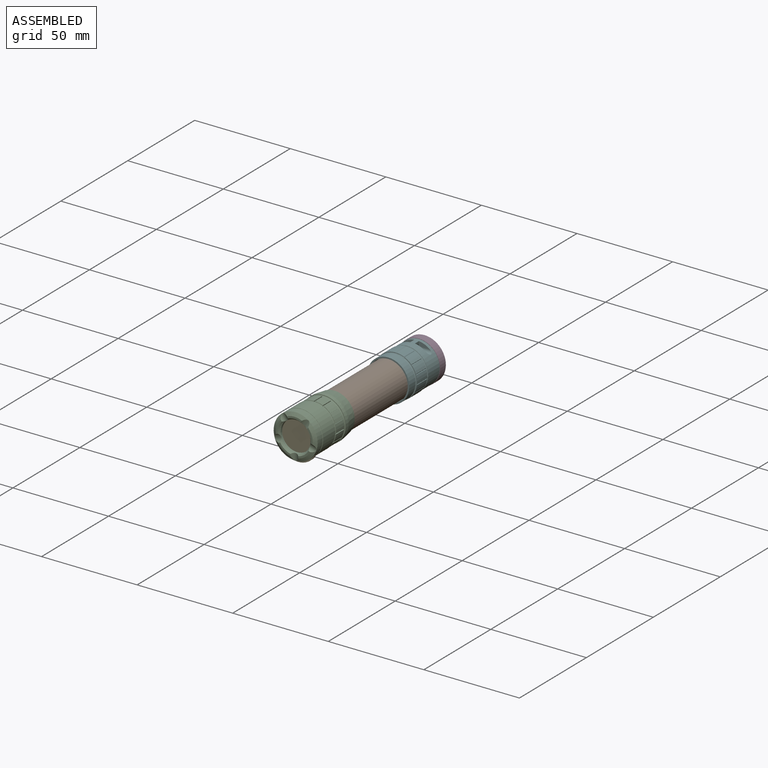
[diagram: assembled view]
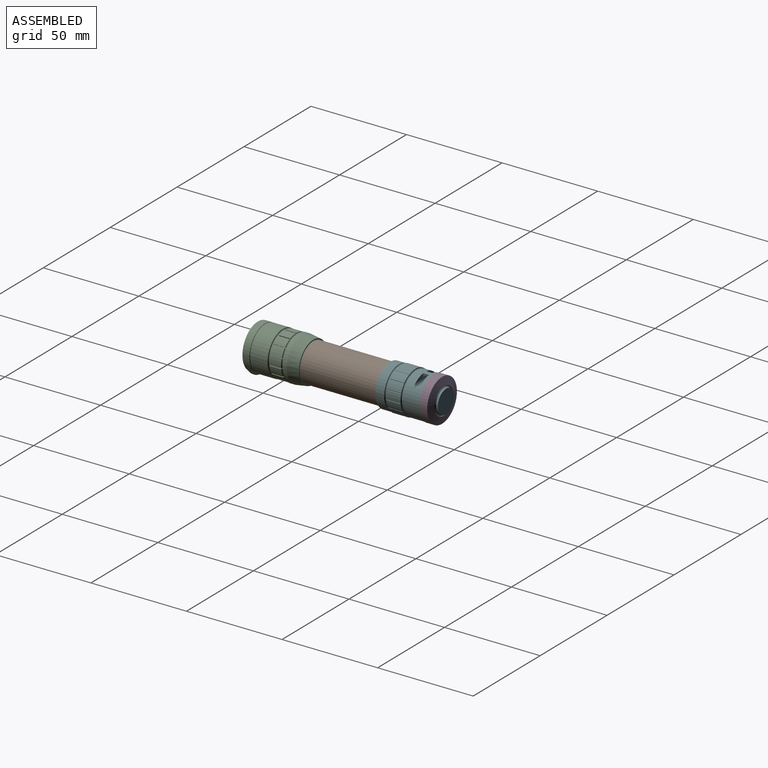
[diagram: assembled view, second angle]
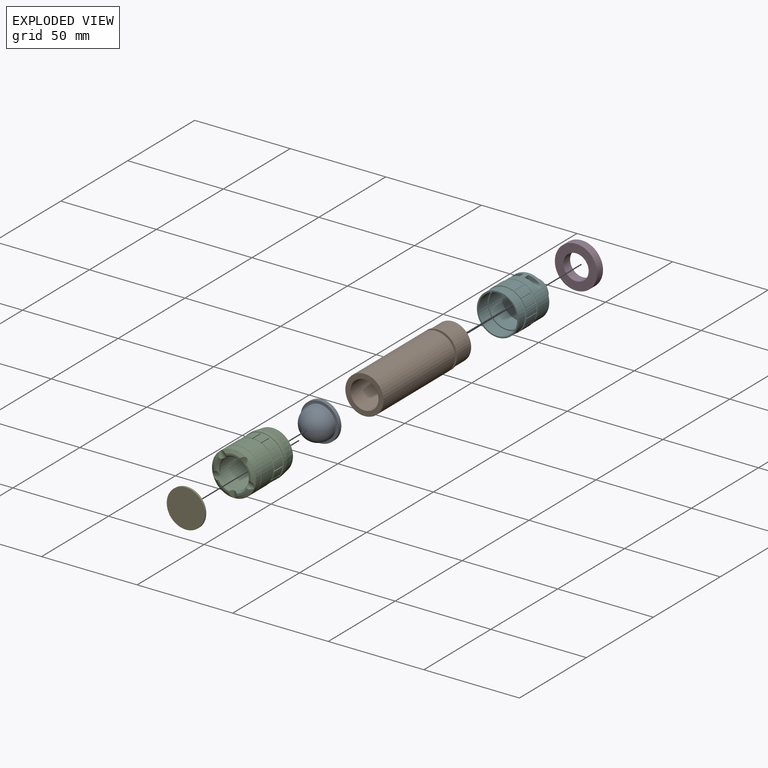
[diagram: exploded view]
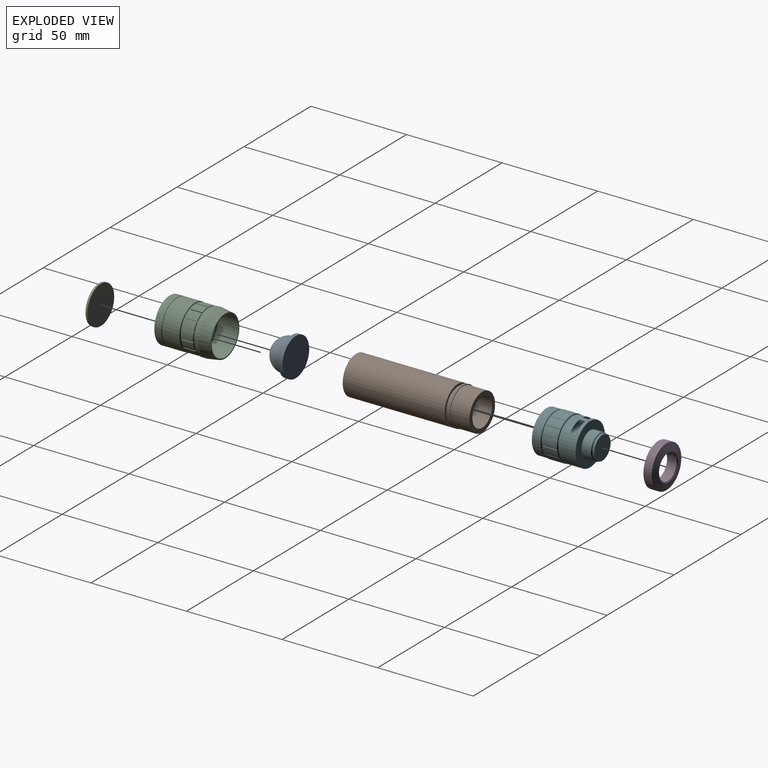
[diagram: exploded view, second angle]
ASSEMBLY  parts=6 mates=5
PART A: 5 faces, bbox 20x12x20 mm
  f0: cylinder r=8.5mm len=17mm, axis (0,-1,0), area 80.1mm2, adj f1,f4
  f1: sphere r=8.5mm, area 454mm2, adj f0
  f2: plane 20x20mm, normal (0,1,0), area 314.2mm2, adj f3
  f3: cylinder r=10mm len=20mm, axis (0,-1,0), area 125.7mm2, adj f2,f4
  f4: plane 20x20mm, normal (0,-1,0), area 87.2mm2, adj f0,f3
PART B: 10 faces, bbox 20x66x20 mm
  f0: cylinder r=10mm len=53.3mm, axis (0,-1,0), area 3348.9mm2, adj f1,f9
  f1: plane 20x20mm, normal (0,-1,0), area 144.4mm2, adj f0,f2
  f2: cylinder r=7.35mm len=66mm, axis (0,-1,0), area 3048mm2, adj f1,f3
  f3: plane 19.25x19.25mm, normal (0,1,0), area 121.3mm2, adj f2,f4
  f4: cylinder r=9.62mm len=19.25mm, axis (0,-1,0), area 604.8mm2, adj f3,f5
  f5: plane 20x20mm, normal (0,1,0), area 23.1mm2, adj f4,f6
  f6: cylinder r=10mm len=20mm, axis (0,-1,0), area 75.4mm2, adj f5,f7
  f7: plane 20x20mm, normal (0,-1,0), area 70.9mm2, adj f6,f8
  f8: cylinder r=8.8mm len=17.6mm, axis (0,-1,0), area 82.9mm2, adj f7,f9
  f9: plane 20x20mm, normal (0,1,0), area 70.9mm2, adj f0,f8
PART C: 95 faces, bbox 25.3x30x25.3 mm
  f0: cone r=11.5mm half-angle=60.9deg, axis (0,1,0), area 21.6mm2, adj f2,f32,f93,f94
  f1: cone r=7.85mm half-angle=40.4deg, axis (0,-1,0), area 10mm2, adj f2,f34,f93,f94
  f2: plane 7.53x3.11mm, normal (0,-1,0), area 7.5mm2, adj f0,f1,f93,f94
  f3: cone r=11.5mm half-angle=60.9deg, axis (0,1,0), area 21.6mm2, adj f32,f33,f90,f94
  f4: cone r=11.5mm half-angle=60.9deg, axis (0,1,0), area 21.6mm2, adj f7,f32,f92,f93
  f5: cone r=7.85mm half-angle=40.4deg, axis (0,-1,0), area 10mm2, adj f33,f34,f90,f94
  f6: cone r=7.85mm half-angle=40.4deg, axis (0,-1,0), area 10mm2, adj f7,f34,f92,f93
  f7: plane 7.92x1.67mm, normal (0,-1,0), area 7.5mm2, adj f4,f6,f92,f93
  f8: cone r=11.5mm half-angle=60.9deg, axis (0,1,0), area 21.6mm2, adj f10,f32,f91,f92
  f9: cone r=7.85mm half-angle=40.4deg, axis (0,-1,0), area 10mm2, adj f10,f34,f91,f92
  f10: plane 7.53x3.11mm, normal (0,-1,0), area 7.5mm2, adj f8,f9,f91,f92
  f11: cone r=11.5mm half-angle=60.9deg, axis (0,1,0), area 21.6mm2, adj f12,f32,f90,f91
  f12: plane 6.41x4.97mm, normal (0,-1,0), area 7.5mm2, adj f11,f13,f90,f91
  f13: cone r=7.85mm half-angle=40.4deg, axis (0,-1,0), area 10mm2, adj f12,f34,f90,f91
  f14: cylinder r=11.35mm len=6mm, axis (0,-1,0), area 25.5mm2, adj f28,f43,f45,f89
  f15: cylinder r=11.35mm len=6mm, axis (0,-1,0), area 25.5mm2, adj f28,f43,f86,f87
  f16: cylinder r=11.35mm len=6mm, axis (0,-1,0), area 25.5mm2, adj f28,f43,f83,f84
  f17: cylinder r=11.35mm len=6mm, axis (0,-1,0), area 25.5mm2, adj f28,f43,f80,f81
  f18: cylinder r=11.35mm len=6mm, axis (0,-1,0), area 25.5mm2, adj f28,f43,f77,f78
  f19: cylinder r=11.35mm len=6mm, axis (0,-1,0), area 25.5mm2, adj f28,f43,f74,f75
  f20: cylinder r=11.35mm len=6mm, axis (0,-1,0), area 25.5mm2, adj f28,f43,f71,f72
  f21: cylinder r=11.35mm len=6mm, axis (0,-1,0), area 25.5mm2, adj f28,f43,f68,f69
  f22: cylinder r=11.35mm len=6mm, axis (0,-1,0), area 25.5mm2, adj f28,f43,f65,f66
  f23: cylinder r=11.35mm len=6mm, axis (0,-1,0), area 25.5mm2, adj f28,f43,f62,f63
  f24: cylinder r=11.35mm len=6mm, axis (0,-1,0), area 25.5mm2, adj f28,f43,f59,f60
  f25: cylinder r=11.35mm len=6mm, axis (0,-1,0), area 25.5mm2, adj f28,f43,f56,f57
  f26: cylinder r=11.35mm len=6mm, axis (0,-1,0), area 25.5mm2, adj f28,f43,f53,f54
  f27: cylinder r=11.35mm len=6mm, axis (0,-1,0), area 25.5mm2, adj f28,f43,f50,f51
  f28: torus R=11.35mm, axis (0,-1,0), area 103.2mm2, adj f14,f15,f16,f17,f18,f19,f20,f21
  f29: plane 23x23mm, normal (0,1,0), area 10.8mm2, adj f28,f30
  f30: cylinder r=11.5mm len=23mm, axis (0,-1,0), area 643.1mm2, adj f29,f31
  f31: torus R=11.5mm, axis (0,-1,0), area 56mm2, adj f30,f32
  f32: cylinder r=11.5mm len=23mm, axis (0,-1,0), area 267.3mm2, adj f0,f3,f4,f8,f11,f31
  f33: plane 6.41x4.97mm, normal (0,-1,0), area 7.5mm2, adj f3,f5,f90,f94
  f34: cylinder r=7.85mm len=15.7mm, axis (0,-1,0), area 74mm2, adj f1,f5,f6,f9,f13,f35
  f35: plane 18x18mm, normal (0,1,0), area 60.9mm2, adj f34,f36
  f36: cylinder r=9mm len=18mm, axis (0,-1,0), area 927.4mm2, adj f35,f37
  f37: plane 20x20mm, normal (0,1,0), area 59.7mm2, adj f36,f38
  f38: cylinder r=10mm len=20mm, axis (0,-1,0), area 697.4mm2, adj f37,f39
  f39: plane 21.2x21.2mm, normal (0,1,0), area 38.8mm2, adj f38,f40
  f40: cone r=10.6mm half-angle=8.7deg, axis (0,-1,0), area 414.4mm2, adj f39,f41
  f41: cylinder r=11.5mm len=23mm, axis (0,-1,0), area 144.5mm2, adj f40,f42
  f42: plane 23x23mm, normal (0,-1,0), area 10.8mm2, adj f41,f43
  f43: torus R=11.35mm, axis (0,-1,0), area 103.2mm2, adj f14,f15,f16,f17,f18,f19,f20,f21
  f44: cylinder r=11.35mm len=6mm, axis (0,-1,0), area 25.5mm2, adj f28,f43,f47,f48
  f45: plane 6.9x0.46mm, normal (0.91,0,-0.41), area 3.1mm2, adj f14,f28,f43,f46
  f46: plane 7x0.46mm, normal (0.41,0,0.91), area 3.5mm2, adj f28,f43,f45,f47
  f47: plane 6.9x0.46mm, normal (-0.91,0,0.41), area 3.1mm2, adj f28,f43,f44,f46
  f48: plane 6.9x0.37mm, normal (0.67,0,-0.74), area 3.1mm2, adj f28,f43,f44,f49
  f49: plane 7x0.37mm, normal (0.74,0,0.67), area 3.5mm2, adj f28,f43,f48,f50
  f50: plane 6.9x0.37mm, normal (-0.67,0,0.74), area 3.1mm2, adj f27,f28,f43,f49
  f51: plane 6.9x0.48mm, normal (0.31,0,-0.95), area 3.1mm2, adj f27,f28,f43,f52
  f52: plane 7x0.48mm, normal (0.95,0,0.31), area 3.5mm2, adj f28,f43,f51,f53
  f53: plane 6.9x0.48mm, normal (-0.31,0,0.95), area 3.1mm2, adj f26,f28,f43,f52
  f54: plane 6.9x0.5mm, normal (-0.1,0,-0.99), area 3.1mm2, adj f26,f28,f43,f55
  f55: plane 7x0.5mm, normal (0.99,0,-0.1), area 3.5mm2, adj f28,f43,f54,f56
  f56: plane 6.9x0.5mm, normal (0.1,0,0.99), area 3.1mm2, adj f25,f28,f43,f55
  f57: plane 6.9x0.43mm, normal (-0.5,0,-0.87), area 3.1mm2, adj f25,f28,f43,f58
  f58: plane 7x0.43mm, normal (0.87,0,-0.5), area 3.5mm2, adj f28,f43,f57,f59
  f59: plane 6.9x0.43mm, normal (0.5,0,0.87), area 3.1mm2, adj f24,f28,f43,f58
  f60: plane 6.9x0.41mm, normal (-0.81,0,-0.59), area 3.1mm2, adj f24,f28,f43,f61
  f61: plane 7x0.4mm, normal (0.59,0,-0.81), area 3.5mm2, adj f28,f43,f60,f62
  f62: plane 6.9x0.41mm, normal (0.81,0,0.59), area 3.1mm2, adj f23,f28,f43,f61
  f63: plane 6.9x0.49mm, normal (-0.98,0,-0.21), area 3.1mm2, adj f23,f28,f43,f64
  f64: plane 7x0.49mm, normal (0.21,0,-0.98), area 3.5mm2, adj f28,f43,f63,f65
  f65: plane 6.9x0.49mm, normal (0.98,0,0.21), area 3.1mm2, adj f22,f28,f43,f64
  f66: plane 6.9x0.49mm, normal (-0.98,0,0.21), area 3.1mm2, adj f22,f28,f43,f67
  f67: plane 7x0.49mm, normal (-0.21,0,-0.98), area 3.5mm2, adj f28,f43,f66,f68
  f68: plane 6.9x0.49mm, normal (0.98,0,-0.21), area 3.1mm2, adj f21,f28,f43,f67
  f69: plane 6.9x0.41mm, normal (-0.81,0,0.59), area 3.1mm2, adj f21,f28,f43,f70
  f70: plane 7x0.4mm, normal (-0.59,0,-0.81), area 3.5mm2, adj f28,f43,f69,f71
  f71: plane 6.9x0.41mm, normal (0.81,0,-0.59), area 3.1mm2, adj f20,f28,f43,f70
  f72: plane 6.9x0.43mm, normal (-0.5,0,0.87), area 3.1mm2, adj f20,f28,f43,f73
  f73: plane 7x0.43mm, normal (-0.87,0,-0.5), area 3.5mm2, adj f28,f43,f72,f74
  f74: plane 6.9x0.43mm, normal (0.5,0,-0.87), area 3.1mm2, adj f19,f28,f43,f73
  f75: plane 6.9x0.5mm, normal (-0.1,0,0.99), area 3.1mm2, adj f19,f28,f43,f76
  f76: plane 7x0.5mm, normal (-0.99,0,-0.1), area 3.5mm2, adj f28,f43,f75,f77
  f77: plane 6.9x0.5mm, normal (0.1,0,-0.99), area 3.1mm2, adj f18,f28,f43,f76
  f78: plane 6.9x0.48mm, normal (0.31,0,0.95), area 3.1mm2, adj f18,f28,f43,f79
  f79: plane 7x0.48mm, normal (-0.95,0,0.31), area 3.5mm2, adj f28,f43,f78,f80
  f80: plane 6.9x0.48mm, normal (-0.31,0,-0.95), area 3.1mm2, adj f17,f28,f43,f79
  f81: plane 6.9x0.37mm, normal (0.67,0,0.74), area 3.1mm2, adj f17,f28,f43,f82
  f82: plane 7x0.37mm, normal (-0.74,0,0.67), area 3.5mm2, adj f28,f43,f81,f83
  f83: plane 6.9x0.37mm, normal (-0.67,0,-0.74), area 3.1mm2, adj f16,f28,f43,f82
  f84: plane 6.9x0.46mm, normal (0.91,0,0.41), area 3.1mm2, adj f16,f28,f43,f85
  f85: plane 7x0.46mm, normal (-0.41,0,0.91), area 3.5mm2, adj f28,f43,f84,f86
  f86: plane 6.9x0.46mm, normal (-0.91,0,-0.41), area 3.1mm2, adj f15,f28,f43,f85
  f87: plane 6.9x0.5mm, normal (1,0,0), area 3.1mm2, adj f15,f28,f43,f88
  f88: plane 7x0.5mm, normal (0,0,1), area 3.5mm2, adj f28,f43,f87,f89
  f89: plane 6.9x0.5mm, normal (-1,0,0), area 3.1mm2, adj f14,f28,f43,f88
  f90: cylinder r=2.5mm len=4mm, axis (0,0,1), area 12.8mm2, adj f3,f5,f11,f12,f13,f33
  f91: cylinder r=2.5mm len=4.93mm, axis (0.95,0,0.31), area 12.8mm2, adj f8,f9,f10,f11,f12,f13
  f92: cylinder r=2.5mm len=5.38mm, axis (0.59,0,-0.81), area 12.8mm2, adj f4,f6,f7,f8,f9,f10
  f93: cylinder r=2.5mm len=5.38mm, axis (-0.59,0,-0.81), area 12.8mm2, adj f0,f1,f2,f4,f6,f7
  f94: cylinder r=2.5mm len=4.93mm, axis (-0.95,0,0.31), area 12.8mm2, adj f0,f1,f2,f3,f5,f33
PART D: 5 faces, bbox 22.2x5.6x22.2 mm
  f0: cylinder r=11.1mm len=22.2mm, axis (0,-1,0), area 299.9mm2, adj f1,f4
  f1: plane 22.2x22.2mm, normal (0,-1,0), area 250.2mm2, adj f0,f2
  f2: cylinder r=6.6mm len=13.2mm, axis (0,-1,0), area 207.3mm2, adj f1,f3
  f3: torus R=6.53mm, axis (0,-1,0), area 24.1mm2, adj f2,f4
  f4: cone r=7.05mm half-angle=76.1deg, axis (0,-1,0), area 237.9mm2, adj f0,f3
PART E: 3 faces, bbox 20x1x20 mm
  f0: cylinder r=10mm len=20mm, axis (0,-1,0), area 62.8mm2, adj f1,f2
  f1: plane 20x20mm, normal (0,-1,0), area 314.2mm2, adj f0
  f2: plane 20x20mm, normal (0,1,0), area 314.2mm2, adj f0
PART F: 96 faces, bbox 24.5x29.3x24.5 mm
  f0: cylinder r=1.5mm len=16.93mm, axis (-1,0,0), area 86.4mm2, adj f1,f90,f91,f92,f93,f94,f95
  f1: cylinder r=10.95mm len=21.9mm, axis (0,-1,0), area 550.3mm2, adj f0,f47,f59,f90,f91,f92,f93,f94
  f2: plane 4.45x1.14mm, normal (0,1,0), area 0.9mm2, adj f17,f47,f87,f88
  f3: plane 3.68x2.76mm, normal (0,1,0), area 0.9mm2, adj f18,f47,f85,f86
  f4: plane 3.94x2.39mm, normal (0,1,0), area 0.9mm2, adj f19,f47,f83,f84
  f5: plane 4.53x0.74mm, normal (0,1,0), area 0.9mm2, adj f20,f47,f81,f82
  f6: plane 4.33x1.58mm, normal (0,1,0), area 0.9mm2, adj f21,f47,f79,f80
  f7: plane 3.4x3.09mm, normal (0,1,0), area 0.9mm2, adj f22,f47,f77,f78
  f8: plane 4.16x1.99mm, normal (0,1,0), area 0.9mm2, adj f23,f47,f75,f76
  f9: plane 4.55x0.44mm, normal (0,1,0), area 0.9mm2, adj f24,f47,f73,f74
  f10: plane 4.16x1.99mm, normal (0,1,0), area 0.9mm2, adj f25,f47,f71,f72
  f11: plane 3.4x3.09mm, normal (0,1,0), area 0.9mm2, adj f26,f47,f69,f70
  f12: plane 4.33x1.58mm, normal (0,1,0), area 0.9mm2, adj f27,f47,f67,f68
  f13: plane 4.53x0.74mm, normal (0,1,0), area 0.9mm2, adj f28,f47,f65,f66
  f14: plane 3.94x2.39mm, normal (0,1,0), area 0.9mm2, adj f29,f47,f63,f64
  f15: plane 3.68x2.76mm, normal (0,1,0), area 0.9mm2, adj f30,f47,f61,f62
  f16: plane 4.45x1.14mm, normal (0,1,0), area 0.9mm2, adj f31,f47,f60,f89
  f17: cylinder r=11.15mm len=7.6mm, axis (0,-1,0), area 31.7mm2, adj f2,f32,f87,f88
  f18: cylinder r=11.15mm len=7.6mm, axis (0,-1,0), area 31.7mm2, adj f3,f33,f85,f86
  f19: cylinder r=11.15mm len=7.6mm, axis (0,-1,0), area 31.7mm2, adj f4,f34,f83,f84
  f20: cylinder r=11.15mm len=7.6mm, axis (0,-1,0), area 31.7mm2, adj f5,f35,f81,f82
  f21: cylinder r=11.15mm len=7.6mm, axis (0,-1,0), area 31.7mm2, adj f6,f36,f79,f80
  f22: cylinder r=11.15mm len=7.6mm, axis (0,-1,0), area 31.7mm2, adj f7,f37,f77,f78
  f23: cylinder r=11.15mm len=7.6mm, axis (0,-1,0), area 31.7mm2, adj f8,f38,f75,f76
  f24: cylinder r=11.15mm len=7.6mm, axis (0,-1,0), area 31.7mm2, adj f9,f39,f73,f74
  f25: cylinder r=11.15mm len=7.6mm, axis (0,-1,0), area 31.7mm2, adj f10,f40,f71,f72
  f26: cylinder r=11.15mm len=7.6mm, axis (0,-1,0), area 31.7mm2, adj f11,f41,f69,f70
  f27: cylinder r=11.15mm len=7.6mm, axis (0,-1,0), area 31.7mm2, adj f12,f42,f67,f68
  f28: cylinder r=11.15mm len=7.6mm, axis (0,-1,0), area 31.7mm2, adj f13,f43,f65,f66
  f29: cylinder r=11.15mm len=7.6mm, axis (0,-1,0), area 31.7mm2, adj f14,f44,f63,f64
  f30: cylinder r=11.15mm len=7.6mm, axis (0,-1,0), area 31.7mm2, adj f15,f45,f61,f62
  f31: cylinder r=11.15mm len=7.6mm, axis (0,-1,0), area 31.7mm2, adj f16,f46,f60,f89
  f32: plane 4.45x1.14mm, normal (0,-1,0), area 0.9mm2, adj f17,f48,f87,f88
  f33: plane 3.68x2.76mm, normal (0,-1,0), area 0.9mm2, adj f18,f48,f85,f86
  f34: plane 3.94x2.39mm, normal (0,-1,0), area 0.9mm2, adj f19,f48,f83,f84
  f35: plane 4.53x0.74mm, normal (0,-1,0), area 0.9mm2, adj f20,f48,f81,f82
  f36: plane 4.33x1.58mm, normal (0,-1,0), area 0.9mm2, adj f21,f48,f79,f80
  f37: plane 3.4x3.09mm, normal (0,-1,0), area 0.9mm2, adj f22,f48,f77,f78
  f38: plane 4.16x1.99mm, normal (0,-1,0), area 0.9mm2, adj f23,f48,f75,f76
  f39: plane 4.55x0.44mm, normal (0,-1,0), area 0.9mm2, adj f24,f48,f73,f74
  f40: plane 4.16x1.99mm, normal (0,-1,0), area 0.9mm2, adj f25,f48,f71,f72
  f41: plane 3.4x3.09mm, normal (0,-1,0), area 0.9mm2, adj f26,f48,f69,f70
  f42: plane 4.33x1.58mm, normal (0,-1,0), area 0.9mm2, adj f27,f48,f67,f68
  f43: plane 4.53x0.74mm, normal (0,-1,0), area 0.9mm2, adj f28,f48,f65,f66
  f44: plane 3.94x2.39mm, normal (0,-1,0), area 0.9mm2, adj f29,f48,f63,f64
  f45: plane 3.68x2.76mm, normal (0,-1,0), area 0.9mm2, adj f30,f48,f61,f62
  f46: plane 4.45x1.14mm, normal (0,-1,0), area 0.9mm2, adj f31,f48,f60,f89
  f47: torus R=10.95mm, axis (0,-1,0), area 104.9mm2, adj f1,f2,f3,f4,f5,f6,f7,f8
  f48: torus R=10.95mm, axis (0,-1,0), area 104.9mm2, adj f32,f33,f34,f35,f36,f37,f38,f39
  f49: cylinder r=10.95mm len=21.9mm, axis (0,-1,0), area 316.5mm2, adj f48,f50
  f50: plane 21.9x21.9mm, normal (0,-1,0), area 49.8mm2, adj f49,f51
  f51: cylinder r=10.2mm len=20.4mm, axis (0,-1,0), area 448.6mm2, adj f50,f52
  f52: plane 20.4x20.4mm, normal (0,-1,0), area 35.8mm2, adj f51,f53
  f53: cylinder r=9.62mm len=19.25mm, axis (0,-1,0), area 586.6mm2, adj f52,f54
  f54: plane 19.25x19.25mm, normal (0,-1,0), area 291mm2, adj f53
  f55: plane 12.2x12.2mm, normal (0,1,0), area 116.9mm2, adj f56
  f56: cylinder r=6.1mm len=12.2mm, axis (0,-1,0), area 38.3mm2, adj f55,f57
  f57: cone r=6.1mm half-angle=51.3deg, axis (0,-1,0), area 25.5mm2, adj f56,f58
  f58: cylinder r=6.6mm len=13.2mm, axis (0,-1,0), area 207.3mm2, adj f57,f59
  f59: plane 21.9x21.9mm, normal (0,1,0), area 239.8mm2, adj f1,f58
  f60: plane 7.6x0.28mm, normal (0.89,0,0.46), area 2.4mm2, adj f16,f31,f46,f61
  f61: plane 7.6x0.31mm, normal (-0.25,0,0.97), area 2.4mm2, adj f15,f30,f45,f60
  f62: plane 7.6x0.32mm, normal (1,0,0.06), area 2.4mm2, adj f15,f30,f45,f63
  f63: plane 7.6x0.31mm, normal (0.16,0,0.99), area 2.4mm2, adj f14,f29,f44,f62
  f64: plane 7.6x0.3mm, normal (0.94,0,-0.35), area 2.4mm2, adj f14,f29,f44,f65
  f65: plane 7.6x0.26mm, normal (0.55,0,0.84), area 2.4mm2, adj f13,f28,f43,f64
  f66: plane 7.6x0.22mm, normal (0.71,0,-0.7), area 2.4mm2, adj f13,f28,f43,f67
  f67: plane 7.6x0.27mm, normal (0.84,0,0.54), area 2.4mm2, adj f12,f27,f42,f66
  f68: plane 7.6x0.29mm, normal (0.36,0,-0.93), area 2.4mm2, adj f12,f27,f42,f69
  f69: plane 7.6x0.31mm, normal (0.99,0,0.15), area 2.4mm2, adj f11,f26,f41,f68
  f70: plane 7.6x0.32mm, normal (-0.05,0,-1), area 2.4mm2, adj f11,f26,f41,f71
  f71: plane 7.6x0.3mm, normal (0.96,0,-0.26), area 2.4mm2, adj f10,f25,f40,f70
  f72: plane 7.6x0.28mm, normal (-0.45,0,-0.89), area 2.4mm2, adj f10,f25,f40,f73
  f73: plane 7.6x0.24mm, normal (0.77,0,-0.63), area 2.4mm2, adj f9,f24,f39,f72
  f74: plane 7.6x0.24mm, normal (-0.77,0,-0.63), area 2.4mm2, adj f9,f24,f39,f75
  f75: plane 7.6x0.28mm, normal (0.45,0,-0.89), area 2.4mm2, adj f8,f23,f38,f74
  f76: plane 7.6x0.3mm, normal (-0.96,0,-0.26), area 2.4mm2, adj f8,f23,f38,f77
  f77: plane 7.6x0.32mm, normal (0.05,0,-1), area 2.4mm2, adj f7,f22,f37,f76
  f78: plane 7.6x0.31mm, normal (-0.99,0,0.15), area 2.4mm2, adj f7,f22,f37,f79
  f79: plane 7.6x0.29mm, normal (-0.36,0,-0.93), area 2.4mm2, adj f6,f21,f36,f78
  f80: plane 7.6x0.27mm, normal (-0.84,0,0.54), area 2.4mm2, adj f6,f21,f36,f81
  f81: plane 7.6x0.22mm, normal (-0.71,0,-0.7), area 2.4mm2, adj f5,f20,f35,f80
  f82: plane 7.6x0.26mm, normal (-0.55,0,0.84), area 2.4mm2, adj f5,f20,f35,f83
  f83: plane 7.6x0.3mm, normal (-0.94,0,-0.35), area 2.4mm2, adj f4,f19,f34,f82
  f84: plane 7.6x0.31mm, normal (-0.16,0,0.99), area 2.4mm2, adj f4,f19,f34,f85
  f85: plane 7.6x0.32mm, normal (-1,0,0.06), area 2.4mm2, adj f3,f18,f33,f84
  f86: plane 7.6x0.31mm, normal (0.25,0,0.97), area 2.4mm2, adj f3,f18,f33,f87
  f87: plane 7.6x0.28mm, normal (-0.89,0,0.46), area 2.4mm2, adj f2,f17,f32,f86
  f88: plane 7.6x0.25mm, normal (0.62,0,0.78), area 2.4mm2, adj f2,f17,f32,f89
  f89: plane 7.6x0.25mm, normal (-0.62,0,0.78), area 2.4mm2, adj f16,f31,f46,f88
  f90: plane 5.76x2.43mm, normal (0,1,0), area 8.9mm2, adj f0,f1,f91
  f91: plane 3x2.43mm, normal (-1,0,0), area 3.8mm2, adj f0,f1,f90,f92
  f92: plane 5.76x2.43mm, normal (0,-1,0), area 8.9mm2, adj f0,f1,f91
  f93: plane 3x2.43mm, normal (1,0,0), area 3.8mm2, adj f0,f1,f94,f95
  f94: plane 5.76x2.43mm, normal (0,1,0), area 8.9mm2, adj f0,f1,f93
  f95: plane 5.76x2.43mm, normal (0,-1,0), area 8.9mm2, adj f0,f1,f93
PLACE A t=(-13.56,7.69,14.43)mm
PLACE B t=(-13.56,7.69,14.43)mm
PLACE C t=(-13.56,-13.21,14.43)mm
PLACE D t=(-13.56,79.89,14.43)mm
PLACE E t=(-13.05,-11.07,12.11)mm
PLACE F t=(-13.56,56.99,14.43)mm
MATE parallel E.f0 <-> C.f0  axis (0,-1,0) through (-13.05,-11.07,12.11)mm
MATE parallel F.f1 <-> B.f0  axis (0,-1,0) through (-13.56,73.69,14.43)mm
MATE parallel D.f0 <-> F.f1  axis (0,-1,0) through (-13.56,79.89,14.43)mm
MATE parallel A.f0 <-> C.f0  axis (0,-1,0) through (-13.56,5.69,14.43)mm
MATE parallel B.f0 <-> A.f0  axis (0,-1,0) through (-13.56,7.69,14.43)mm
